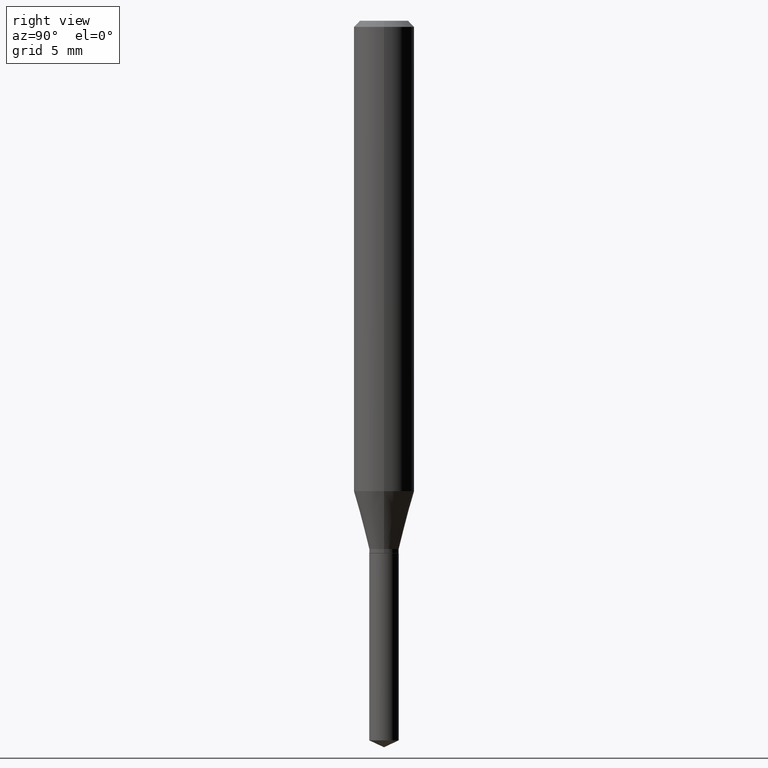
[diagram: clean part render]
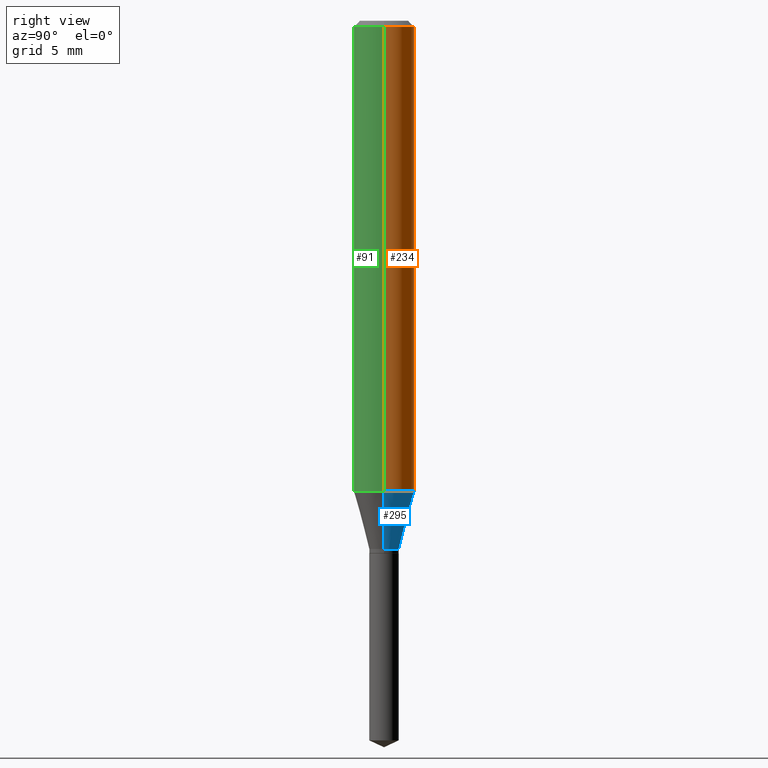
[diagram: same view with three faces highlighted in distinct colors, each labeled with its STEP entity id]
A machine part, right view with three faces highlighted in distinct colors.
Their STEP definitions:

[orange] entity #234 — the highlighted cylindrical surface (edge-blend (fillet) strip) has radius 1.5875 mm, axis along (-0, 0, 1).
#9 = LINE ( 'NONE', #281, #197 ) ;
#12 = LINE ( 'NONE', #461, #118 ) ;
#17 = VERTEX_POINT ( 'NONE', #326 ) ;
#47 = CARTESIAN_POINT ( 'NONE',  ( 3.056836007731442729E-31, -4.364351673553962300E-17, -0.01250000000000008916 ) ) ;
#56 = FACE_OUTER_BOUND ( 'NONE', #137, .T. ) ;
#61 = AXIS2_PLACEMENT_3D ( 'NONE', #47, #314, #319 ) ;
#62 = CARTESIAN_POINT ( 'NONE',  ( -0.06250000000000012490, -2.946747994284551649E-15, -0.9711743741577958389 ) ) ;
#65 = ORIENTED_EDGE ( 'NONE', *, *, #445, .T. ) ;
#68 = ORIENTED_EDGE ( 'NONE', *, *, #268, .F. ) ;
#70 = CIRCLE ( 'NONE', #61, 0.06250000000000000000 ) ;
#118 = VECTOR ( 'NONE', #355, 39.37007874015748143 ) ;
#129 = DIRECTION ( 'NONE',  ( -2.445468806185136597E-29, 3.491481338843145583E-15, 1.000000000000000000 ) ) ;
#130 = VERTEX_POINT ( 'NONE', #414 ) ;
#131 = CYLINDRICAL_SURFACE ( 'NONE', #378, 0.06250000000000005551 ) ;
#137 = EDGE_LOOP ( 'NONE', ( #65, #372, #68, #141 ) ) ;
#141 = ORIENTED_EDGE ( 'NONE', *, *, #179, .F. ) ;
#171 = DIRECTION ( 'NONE',  ( -2.445468806185136597E-29, 3.491481338843145583E-15, 1.000000000000000000 ) ) ;
#179 = EDGE_CURVE ( 'NONE', #331, #17, #12, .T. ) ;
#197 = VECTOR ( 'NONE', #465, 39.37007874015748143 ) ;
#214 = DIRECTION ( 'NONE',  ( 1.000000000000000000, -6.982962677686264344E-15, 0.000000000000000000 ) ) ;
#234 = ADVANCED_FACE ( 'NONE', ( #56 ), #131, .T. ) ;
#242 = CARTESIAN_POINT ( 'NONE',  ( 0.000000000000000000, 0.000000000000000000, 0.000000000000000000 ) ) ;
#268 = EDGE_CURVE ( 'NONE', #17, #130, #70, .T. ) ;
#281 = CARTESIAN_POINT ( 'NONE',  ( -0.06250000000000005551, 4.440892098500630106E-16, -3.074334431409318916E-30 ) ) ;
#283 = CARTESIAN_POINT ( 'NONE',  ( 0.06250000000000012490, -3.827272371490007513E-15, -0.9711743741577958389 ) ) ;
#288 = EDGE_CURVE ( 'NONE', #435, #130, #9, .T. ) ;
#314 = DIRECTION ( 'NONE',  ( -2.445468806185136597E-29, 3.491481338843145583E-15, 1.000000000000000000 ) ) ;
#317 = DIRECTION ( 'NONE',  ( 1.000000000000000000, -6.982962677686267499E-15, 4.876176775795936353E-29 ) ) ;
#319 = DIRECTION ( 'NONE',  ( 1.000000000000000000, -6.982962677686266711E-15, 0.000000000000000000 ) ) ;
#326 = CARTESIAN_POINT ( 'NONE',  ( 0.06250000000000000000, -4.800786840909313294E-16, -0.01250000000000008916 ) ) ;
#331 = VERTEX_POINT ( 'NONE', #283 ) ;
#355 = DIRECTION ( 'NONE',  ( -2.445468806185136877E-29, 3.491481338843145188E-15, 1.000000000000000000 ) ) ;
#369 = AXIS2_PLACEMENT_3D ( 'NONE', #371, #171, #214 ) ;
#371 = CARTESIAN_POINT ( 'NONE',  ( 2.374976637369262304E-29, -3.390837204134615054E-15, -0.9711743741577958389 ) ) ;
#372 = ORIENTED_EDGE ( 'NONE', *, *, #288, .T. ) ;
#378 = AXIS2_PLACEMENT_3D ( 'NONE', #242, #129, #317 ) ;
#414 = CARTESIAN_POINT ( 'NONE',  ( -0.06250000000000000000, -1.273151150585013508E-15, -0.01250000000000008916 ) ) ;
#435 = VERTEX_POINT ( 'NONE', #62 ) ;
#445 = EDGE_CURVE ( 'NONE', #331, #435, #479, .T. ) ;
#461 = CARTESIAN_POINT ( 'NONE',  ( 0.06250000000000005551, -4.364351673553921131E-16, 3.047610484872463023E-30 ) ) ;
#465 = DIRECTION ( 'NONE',  ( -2.445468806185136877E-29, 3.491481338843145188E-15, 1.000000000000000000 ) ) ;
#479 = CIRCLE ( 'NONE', #369, 0.06250000000000012490 ) ;

[blue] entity #295 — the highlighted conical surface has half-angle 15 deg.
#13 = CONICAL_SURFACE ( 'NONE', #79, 0.03049999999999999586, 0.2617993877991499629 ) ;
#41 = CARTESIAN_POINT ( 'NONE',  ( 0.03049999999999999586, -4.020789909811766369E-15, -1.090600000000000014 ) ) ;
#51 = LINE ( 'NONE', #84, #142 ) ;
#62 = CARTESIAN_POINT ( 'NONE',  ( -0.06250000000000012490, -2.946747994284551649E-15, -0.9711743741577958389 ) ) ;
#67 = CARTESIAN_POINT ( 'NONE',  ( 0.03049999999999999586, -4.020789909811766369E-15, -1.090600000000000014 ) ) ;
#79 = AXIS2_PLACEMENT_3D ( 'NONE', #430, #235, #202 ) ;
#84 = CARTESIAN_POINT ( 'NONE',  ( -0.03049999999999999586, -3.591094013735504691E-15, -1.090600000000000014 ) ) ;
#86 = CIRCLE ( 'NONE', #456, 0.03049999999999999586 ) ;
#87 = DIRECTION ( 'NONE',  ( -2.445468806185136597E-29, 3.491481338843145583E-15, 1.000000000000000000 ) ) ;
#98 = LINE ( 'NONE', #67, #329 ) ;
#107 = VERTEX_POINT ( 'NONE', #154 ) ;
#142 = VECTOR ( 'NONE', #394, 39.37007874015748854 ) ;
#145 = VERTEX_POINT ( 'NONE', #41 ) ;
#154 = CARTESIAN_POINT ( 'NONE',  ( -0.03049999999999999586, -3.606631105693356467E-15, -1.090600000000000014 ) ) ;
#171 = DIRECTION ( 'NONE',  ( -2.445468806185136597E-29, 3.491481338843145583E-15, 1.000000000000000000 ) ) ;
#202 = DIRECTION ( 'NONE',  ( 1.000000000000000000, -6.982962677686269866E-15, 0.000000000000000000 ) ) ;
#203 = FACE_OUTER_BOUND ( 'NONE', #210, .T. ) ;
#210 = EDGE_LOOP ( 'NONE', ( #365, #354, #480, #220 ) ) ;
#214 = DIRECTION ( 'NONE',  ( 1.000000000000000000, -6.982962677686264344E-15, 0.000000000000000000 ) ) ;
#220 = ORIENTED_EDGE ( 'NONE', *, *, #476, .F. ) ;
#235 = DIRECTION ( 'NONE',  ( -2.445468806185136597E-29, 3.491481338843145583E-15, 1.000000000000000000 ) ) ;
#244 = EDGE_CURVE ( 'NONE', #145, #107, #86, .T. ) ;
#251 = DIRECTION ( 'NONE',  ( 0.2588190451025212391, 1.565188264969622362E-15, 0.9659258262890679791 ) ) ;
#261 = EDGE_CURVE ( 'NONE', #107, #435, #51, .T. ) ;
#283 = CARTESIAN_POINT ( 'NONE',  ( 0.06250000000000012490, -3.827272371490007513E-15, -0.9711743741577958389 ) ) ;
#295 = ADVANCED_FACE ( 'NONE', ( #203 ), #13, .T. ) ;
#329 = VECTOR ( 'NONE', #251, 39.37007874015748854 ) ;
#331 = VERTEX_POINT ( 'NONE', #283 ) ;
#354 = ORIENTED_EDGE ( 'NONE', *, *, #261, .T. ) ;
#365 = ORIENTED_EDGE ( 'NONE', *, *, #244, .T. ) ;
#369 = AXIS2_PLACEMENT_3D ( 'NONE', #371, #171, #214 ) ;
#371 = CARTESIAN_POINT ( 'NONE',  ( 2.374976637369262304E-29, -3.390837204134615054E-15, -0.9711743741577958389 ) ) ;
#385 = DIRECTION ( 'NONE',  ( 1.000000000000000000, -6.982962677686269866E-15, 0.000000000000000000 ) ) ;
#394 = DIRECTION ( 'NONE',  ( -0.2588190451025212391, 5.211531920934549464E-15, 0.9659258262890679791 ) ) ;
#426 = CARTESIAN_POINT ( 'NONE',  ( 2.667028280025510409E-29, -3.807809548142335045E-15, -1.090600000000000014 ) ) ;
#430 = CARTESIAN_POINT ( 'NONE',  ( 2.667028280025510409E-29, -3.807809548142335045E-15, -1.090600000000000014 ) ) ;
#435 = VERTEX_POINT ( 'NONE', #62 ) ;
#445 = EDGE_CURVE ( 'NONE', #331, #435, #479, .T. ) ;
#456 = AXIS2_PLACEMENT_3D ( 'NONE', #426, #87, #385 ) ;
#476 = EDGE_CURVE ( 'NONE', #145, #331, #98, .T. ) ;
#479 = CIRCLE ( 'NONE', #369, 0.06250000000000012490 ) ;
#480 = ORIENTED_EDGE ( 'NONE', *, *, #445, .F. ) ;

[green] entity #91 — the highlighted cylindrical surface (edge-blend (fillet) strip) has radius 1.5875 mm, axis along (-0, 0, 1).
#5 = CYLINDRICAL_SURFACE ( 'NONE', #53, 0.06250000000000005551 ) ;
#6 = CIRCLE ( 'NONE', #36, 0.06250000000000000000 ) ;
#9 = LINE ( 'NONE', #281, #197 ) ;
#12 = LINE ( 'NONE', #461, #118 ) ;
#17 = VERTEX_POINT ( 'NONE', #326 ) ;
#29 = ORIENTED_EDGE ( 'NONE', *, *, #222, .T. ) ;
#36 = AXIS2_PLACEMENT_3D ( 'NONE', #246, #469, #429 ) ;
#53 = AXIS2_PLACEMENT_3D ( 'NONE', #343, #83, #109 ) ;
#57 = EDGE_LOOP ( 'NONE', ( #139, #29, #390, #277 ) ) ;
#62 = CARTESIAN_POINT ( 'NONE',  ( -0.06250000000000012490, -2.946747994284551649E-15, -0.9711743741577958389 ) ) ;
#83 = DIRECTION ( 'NONE',  ( -2.445468806185136597E-29, 3.491481338843145583E-15, 1.000000000000000000 ) ) ;
#91 = ADVANCED_FACE ( 'NONE', ( #420 ), #5, .T. ) ;
#109 = DIRECTION ( 'NONE',  ( 1.000000000000000000, -6.982962677686267499E-15, 4.876176775795936353E-29 ) ) ;
#118 = VECTOR ( 'NONE', #355, 39.37007874015748143 ) ;
#130 = VERTEX_POINT ( 'NONE', #414 ) ;
#139 = ORIENTED_EDGE ( 'NONE', *, *, #288, .F. ) ;
#169 = DIRECTION ( 'NONE',  ( 1.000000000000000000, -6.982962677686264344E-15, 0.000000000000000000 ) ) ;
#179 = EDGE_CURVE ( 'NONE', #331, #17, #12, .T. ) ;
#197 = VECTOR ( 'NONE', #465, 39.37007874015748143 ) ;
#222 = EDGE_CURVE ( 'NONE', #435, #331, #386, .T. ) ;
#237 = AXIS2_PLACEMENT_3D ( 'NONE', #466, #432, #169 ) ;
#246 = CARTESIAN_POINT ( 'NONE',  ( 3.056836007731442729E-31, -4.364351673553962300E-17, -0.01250000000000008916 ) ) ;
#277 = ORIENTED_EDGE ( 'NONE', *, *, #316, .F. ) ;
#281 = CARTESIAN_POINT ( 'NONE',  ( -0.06250000000000005551, 4.440892098500630106E-16, -3.074334431409318916E-30 ) ) ;
#283 = CARTESIAN_POINT ( 'NONE',  ( 0.06250000000000012490, -3.827272371490007513E-15, -0.9711743741577958389 ) ) ;
#288 = EDGE_CURVE ( 'NONE', #435, #130, #9, .T. ) ;
#316 = EDGE_CURVE ( 'NONE', #130, #17, #6, .T. ) ;
#326 = CARTESIAN_POINT ( 'NONE',  ( 0.06250000000000000000, -4.800786840909313294E-16, -0.01250000000000008916 ) ) ;
#331 = VERTEX_POINT ( 'NONE', #283 ) ;
#343 = CARTESIAN_POINT ( 'NONE',  ( 0.000000000000000000, 0.000000000000000000, 0.000000000000000000 ) ) ;
#355 = DIRECTION ( 'NONE',  ( -2.445468806185136877E-29, 3.491481338843145188E-15, 1.000000000000000000 ) ) ;
#386 = CIRCLE ( 'NONE', #237, 0.06250000000000012490 ) ;
#390 = ORIENTED_EDGE ( 'NONE', *, *, #179, .T. ) ;
#414 = CARTESIAN_POINT ( 'NONE',  ( -0.06250000000000000000, -1.273151150585013508E-15, -0.01250000000000008916 ) ) ;
#420 = FACE_OUTER_BOUND ( 'NONE', #57, .T. ) ;
#429 = DIRECTION ( 'NONE',  ( 1.000000000000000000, -6.982962677686266711E-15, 0.000000000000000000 ) ) ;
#432 = DIRECTION ( 'NONE',  ( -2.445468806185136597E-29, 3.491481338843145583E-15, 1.000000000000000000 ) ) ;
#435 = VERTEX_POINT ( 'NONE', #62 ) ;
#461 = CARTESIAN_POINT ( 'NONE',  ( 0.06250000000000005551, -4.364351673553921131E-16, 3.047610484872463023E-30 ) ) ;
#465 = DIRECTION ( 'NONE',  ( -2.445468806185136877E-29, 3.491481338843145188E-15, 1.000000000000000000 ) ) ;
#466 = CARTESIAN_POINT ( 'NONE',  ( 2.374976637369262304E-29, -3.390837204134615054E-15, -0.9711743741577958389 ) ) ;
#469 = DIRECTION ( 'NONE',  ( -2.445468806185136597E-29, 3.491481338843145583E-15, 1.000000000000000000 ) ) ;